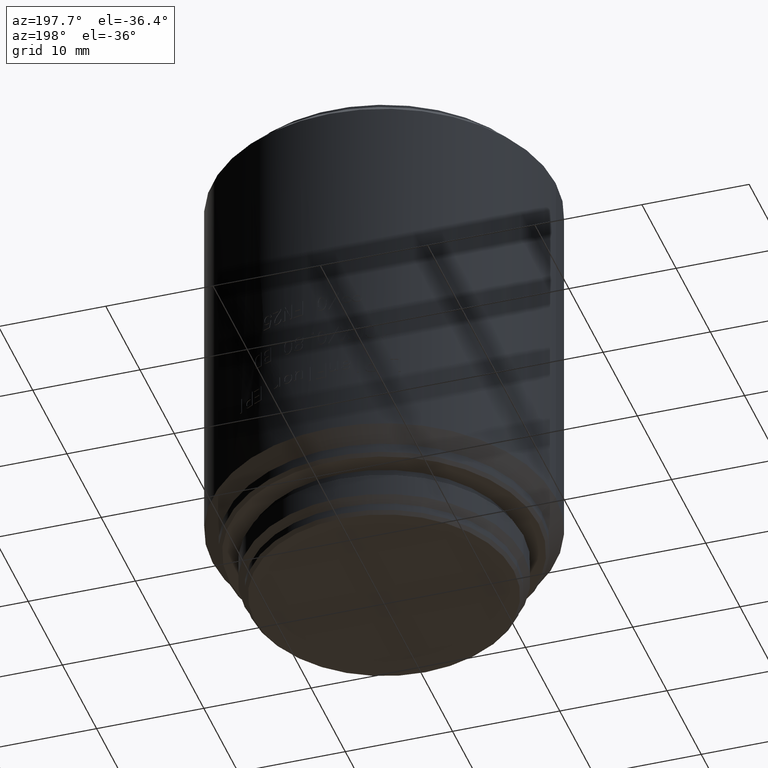
[diagram: clean part render]
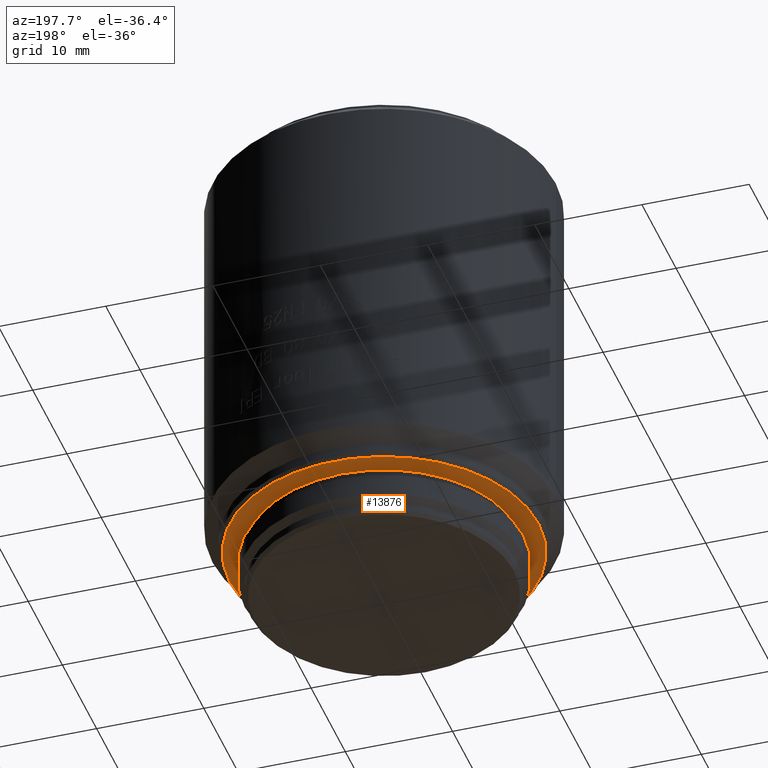
[diagram: same view with one face highlighted and labeled with its STEP entity id]
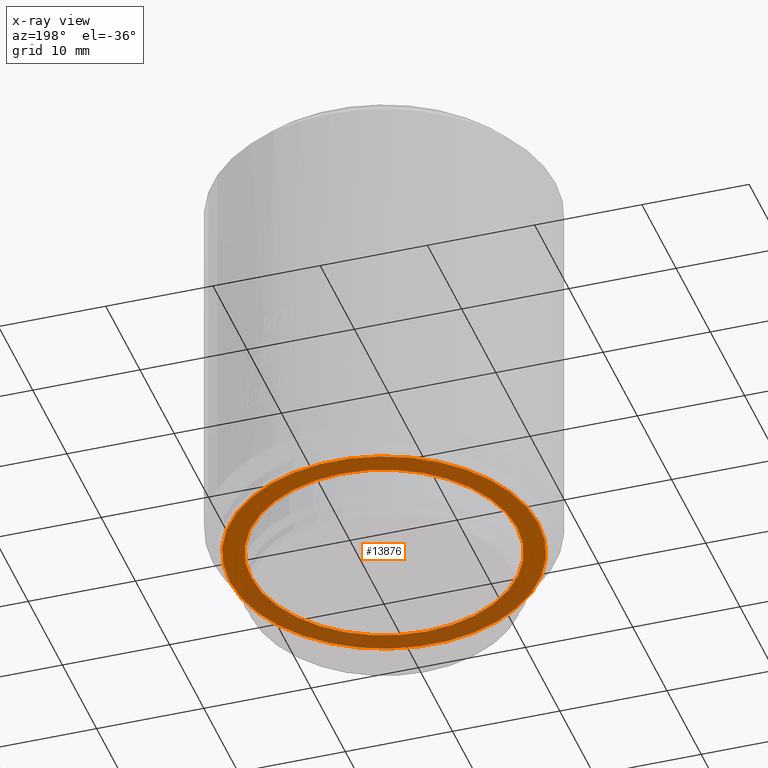
[diagram: x-ray of the same camera — body ghosted, the highlighted face saturated]
A machine part, auxiliary view. The second image highlights one B-rep face of the part: STEP entity #13876.
The next image is the same camera in x-ray: the body ghosted, the highlighted face saturated — about 37% of this face is hidden behind the body in this view.
In plain terms, the highlighted planar face has unit normal (0, 0, -1).
Its self-contained STEP definition (entity closure, byte-faithful):
#111 = CARTESIAN_POINT ( 'NONE',  ( 0.000000000000000000, 0.000000000000000000, 4.700000000000000178 ) ) ;
#637 = VERTEX_POINT ( 'NONE', #6124 ) ;
#869 = CIRCLE ( 'NONE', #7528, 14.40000000000000036 ) ;
#1274 = CARTESIAN_POINT ( 'NONE',  ( 0.000000000000000000, 0.000000000000000000, 4.700000000000000178 ) ) ;
#2760 = DIRECTION ( 'NONE',  ( -1.000000000000000000, 0.000000000000000000, 0.000000000000000000 ) ) ;
#3446 = EDGE_CURVE ( 'NONE', #637, #16688, #15128, .T. ) ;
#5176 = VERTEX_POINT ( 'NONE', #24147 ) ;
#6124 = CARTESIAN_POINT ( 'NONE',  ( 12.40000000000000036, 0.000000000000000000, 4.700000000000000178 ) ) ;
#7528 = AXIS2_PLACEMENT_3D ( 'NONE', #11920, #27317, #25541 ) ;
#7865 = DIRECTION ( 'NONE',  ( -1.000000000000000000, 0.000000000000000000, 0.000000000000000000 ) ) ;
#8841 = CARTESIAN_POINT ( 'NONE',  ( -14.40000000000000036, 1.781861092759398693E-15, 4.700000000000000178 ) ) ;
#9003 = DIRECTION ( 'NONE',  ( 0.000000000000000000, -1.000000000000000000, 0.000000000000000000 ) ) ;
#10012 = EDGE_LOOP ( 'NONE', ( #25007, #25802 ) ) ;
#10835 = AXIS2_PLACEMENT_3D ( 'NONE', #21181, #16596, #7865 ) ;
#11867 = ORIENTED_EDGE ( 'NONE', *, *, #16052, .T. ) ;
#11920 = CARTESIAN_POINT ( 'NONE',  ( 0.000000000000000000, 0.000000000000000000, 4.700000000000000178 ) ) ;
#13665 = CIRCLE ( 'NONE', #24003, 14.40000000000000036 ) ;
#13876 = ADVANCED_FACE ( 'NONE', ( #23962, #14779 ), #19383, .T. ) ;
#14667 = AXIS2_PLACEMENT_3D ( 'NONE', #28412, #19516, #9003 ) ;
#14779 = FACE_OUTER_BOUND ( 'NONE', #16777, .T. ) ;
#15128 = CIRCLE ( 'NONE', #19873, 12.40000000000000036 ) ;
#15178 = EDGE_CURVE ( 'NONE', #15925, #5176, #869, .T. ) ;
#15925 = VERTEX_POINT ( 'NONE', #8841 ) ;
#16052 = EDGE_CURVE ( 'NONE', #5176, #15925, #13665, .T. ) ;
#16062 = DIRECTION ( 'NONE',  ( 0.000000000000000000, 0.000000000000000000, -1.000000000000000000 ) ) ;
#16494 = DIRECTION ( 'NONE',  ( -1.000000000000000000, 0.000000000000000000, 0.000000000000000000 ) ) ;
#16596 = DIRECTION ( 'NONE',  ( 0.000000000000000000, 0.000000000000000000, -1.000000000000000000 ) ) ;
#16688 = VERTEX_POINT ( 'NONE', #28087 ) ;
#16777 = EDGE_LOOP ( 'NONE', ( #11867, #23635 ) ) ;
#18875 = DIRECTION ( 'NONE',  ( 0.000000000000000000, 0.000000000000000000, -1.000000000000000000 ) ) ;
#19383 = PLANE ( 'NONE',  #14667 ) ;
#19516 = DIRECTION ( 'NONE',  ( 0.000000000000000000, 0.000000000000000000, -1.000000000000000000 ) ) ;
#19873 = AXIS2_PLACEMENT_3D ( 'NONE', #111, #16062, #2760 ) ;
#21181 = CARTESIAN_POINT ( 'NONE',  ( 0.000000000000000000, 0.000000000000000000, 4.700000000000000178 ) ) ;
#23635 = ORIENTED_EDGE ( 'NONE', *, *, #15178, .T. ) ;
#23962 = FACE_BOUND ( 'NONE', #10012, .T. ) ;
#24003 = AXIS2_PLACEMENT_3D ( 'NONE', #1274, #18875, #16494 ) ;
#24147 = CARTESIAN_POINT ( 'NONE',  ( 14.40000000000000036, 0.000000000000000000, 4.700000000000000178 ) ) ;
#25007 = ORIENTED_EDGE ( 'NONE', *, *, #3446, .F. ) ;
#25541 = DIRECTION ( 'NONE',  ( -1.000000000000000000, 0.000000000000000000, 0.000000000000000000 ) ) ;
#25802 = ORIENTED_EDGE ( 'NONE', *, *, #25844, .F. ) ;
#25844 = EDGE_CURVE ( 'NONE', #16688, #637, #27904, .T. ) ;
#27317 = DIRECTION ( 'NONE',  ( 0.000000000000000000, 0.000000000000000000, -1.000000000000000000 ) ) ;
#27904 = CIRCLE ( 'NONE', #10835, 12.40000000000000036 ) ;
#28087 = CARTESIAN_POINT ( 'NONE',  ( -12.40000000000000036, 1.518562030942717967E-15, 4.700000000000000178 ) ) ;
#28412 = CARTESIAN_POINT ( 'NONE',  ( 0.000000000000000000, 0.000000000000000000, 4.700000000000000178 ) ) ;